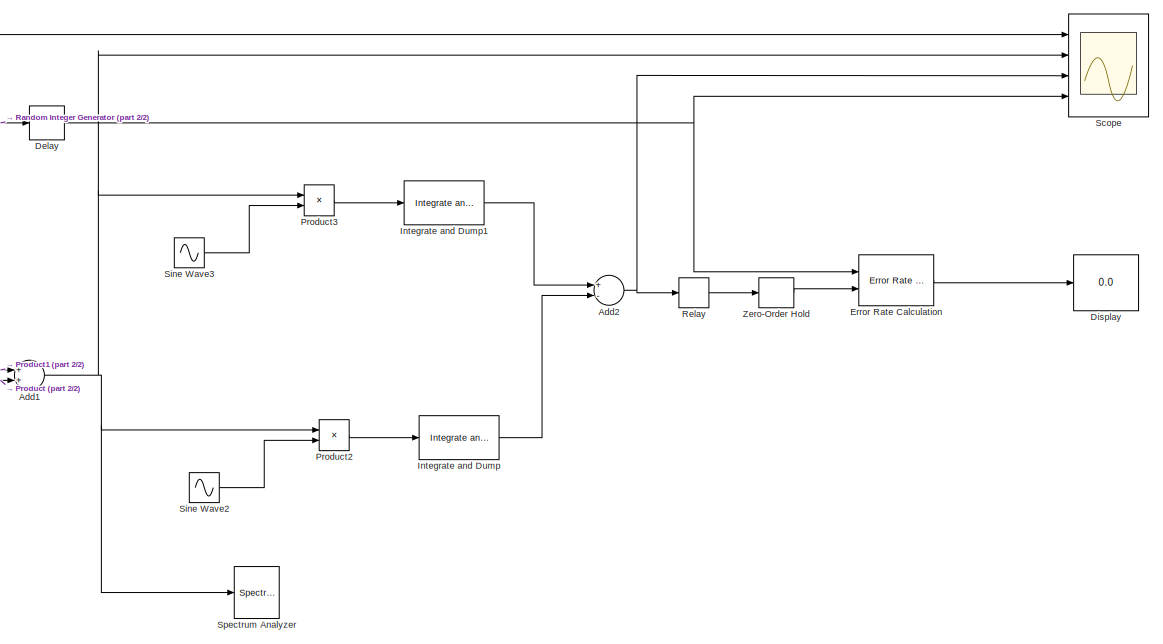
[diagram: root canvas - part 1/2, right side, full height]
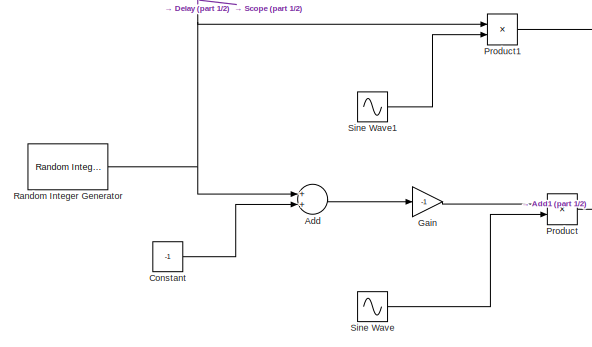
[diagram: root canvas - part 2/2, middle left region]
MODEL slx_38a96ac9a49a
KIND model
CONFIG AbsTol = auto
CONFIG EnableMultiTasking = off
CONFIG FixedStep = auto
CONFIG MaxStep = auto
CONFIG MinStep = auto
CONFIG RelTol = 1e-3
CONFIG SampleTimeConstraint = Unconstrained
CONFIG Solver = VariableStepAuto
CONFIG SolverName = VariableStepAuto
CONFIG StartTime = 0.0
CONFIG StopTime = 3
BLOCK [Sum] Add
  InputSameDT = off
  OutDataTypeStr = Inherit: Inherit via internal rule
  Ports = [2, 1]
  SaturateOnIntegerOverflow = off
BLOCK [Sum] Add1
  InputSameDT = off
  OutDataTypeStr = Inherit: Inherit via internal rule
  Ports = [2, 1]
  SaturateOnIntegerOverflow = off
BLOCK [Sum] Add2
  InputSameDT = off
  Inputs = +-
  OutDataTypeStr = Inherit: Inherit via internal rule
  Ports = [2, 1]
  SaturateOnIntegerOverflow = off
BLOCK [Constant] Constant
  Value = -1
BLOCK [Delay] Delay
  DelayLength = 1
  InputPortMap = u0
  Ports = [1, 1]
BLOCK [Display] Display
  Decimation = 1
  Ports = [1]
BLOCK [Reference] Error Rate Calculation  REF=commsink2/Error Rate
Calculation
  Ports = [2, 1]
  SourceBlock = commsink2/Error Rate\nCalculation
  SourceProductBaseCode = CM
  SourceProductName = Communications System Toolbox
  SourceType = Error Rate Calculation
BLOCK [Gain] Gain
  Gain = -1
  OutDataTypeStr = Inherit: Inherit via internal rule
  ParamDataTypeStr = Inherit: Inherit via internal rule
  SaturateOnIntegerOverflow = off
BLOCK [Reference] Integrate and Dump  REF=commfilt2/Integrate
and Dump
  Ports = [1, 1]
  SourceBlock = commfilt2/Integrate\nand Dump
  SourceProductBaseCode = CM
  SourceProductName = Communications System Toolbox
  SourceType = Integrate and Dump
BLOCK [Reference] Integrate and Dump1  REF=commfilt2/Integrate
and Dump
  Ports = [1, 1]
  SourceBlock = commfilt2/Integrate\nand Dump
  SourceProductBaseCode = CM
  SourceProductName = Communications System Toolbox
  SourceType = Integrate and Dump
BLOCK [Product] Product
  InputSameDT = off
  OutDataTypeStr = Inherit: Inherit via internal rule
  Ports = [2, 1]
  RndMeth = Floor
  SaturateOnIntegerOverflow = off
BLOCK [Product] Product1
  InputSameDT = off
  OutDataTypeStr = Inherit: Inherit via internal rule
  Ports = [2, 1]
  RndMeth = Floor
  SaturateOnIntegerOverflow = off
BLOCK [Product] Product2
  InputSameDT = off
  OutDataTypeStr = Inherit: Inherit via internal rule
  Ports = [2, 1]
  RndMeth = Floor
  SaturateOnIntegerOverflow = off
BLOCK [Product] Product3
  InputSameDT = off
  OutDataTypeStr = Inherit: Inherit via internal rule
  Ports = [2, 1]
  RndMeth = Floor
  SaturateOnIntegerOverflow = off
BLOCK [Reference] Random Integer Generator  REF=commrandsrc3/Random Integer
Generator
  Ports = [0, 1]
  SourceBlock = commrandsrc3/Random Integer\nGenerator
  SourceProductBaseCode = CM
  SourceProductName = Communications System Toolbox
  SourceType = Random Integer Generator
BLOCK [Relay] Relay
  InputProcessing = Elements as channels (sample based)
  OffSwitchValue = 0
  OnSwitchValue = 1
BLOCK [Scope] Scope
  Floating = off
  NumInputPorts = 4
  Ports = [4]
  ScopeSpecificationString = Simulink.scopes.TimeScopeBlockCfg('CurrentConfiguration', extmgr.ConfigurationSet(extmgr.Configuration('Core','General UI',true),extmgr.Configuration('Core','Source UI',true),extmgr.Configuration('Sources','WiredSimulink',true),extmgr.Configuration('Visuals','Time Domain',true,'SerializedDisplays',{struct('MinYLimReal','-0.125','MaxYLimReal','1.125','YLabelReal','','MinYLimMag','0.00000','MaxYLimM...<+3409ch>
BLOCK [Sin] Sine Wave
  Frequency = 10000*2*pi
  Ports = [0, 1]
  SampleTime = 1/100000
BLOCK [Sin] Sine Wave1
  Frequency = 15000*pi*2
  Ports = [0, 1]
  SampleTime = 1/100000
BLOCK [Sin] Sine Wave2
  Frequency = 10000*2*pi
  Ports = [0, 1]
  SampleTime = 1/100000
BLOCK [Sin] Sine Wave3
  Frequency = 15000*2*pi
  Ports = [0, 1]
  SampleTime = 1/100000
BLOCK [SpectrumAnalyzer] Spectrum Analyzer
  Ports = [1]
  ScopeSpecificationString = spbscopes.SpectrumAnalyzerBlockCfg('CurrentConfiguration', extmgr.ConfigurationSet(extmgr.Configuration('Core','General UI',true),extmgr.Configuration('Core','Source UI',true),extmgr.Configuration('Sources','WiredSimulink',true),extmgr.Configuration('Visuals','Spectrum',true,'AxesProperties',struct('Color',{[0 0 0],[0 0 0]},'XColor',{[0.686274509803922 0.686274509803922 0.686274509803922],[0.68627...<+1868ch>
BLOCK [ZeroOrderHold] Zero-Order Hold
  SampleTime = 1/1000
NET Add1:1 -> Product2:1, Product3:1, Scope:2, Spectrum Analyzer:1
NET Add2:1 -> Relay:1, Scope:3
LINE Add:1 -> Gain:1
LINE Constant:1 -> Add:2
NET Delay:1 -> Error Rate Calculation:1, Scope:4
LINE Error Rate Calculation:1 -> Display:1
LINE Gain:1 -> Product:1
LINE Integrate and Dump1:1 -> Add2:1
LINE Integrate and Dump:1 -> Add2:2
LINE Product1:1 -> Add1:1
LINE Product2:1 -> Integrate and Dump:1
LINE Product3:1 -> Integrate and Dump1:1
LINE Product:1 -> Add1:2
NET Random Integer Generator:1 -> Add:1, Delay:1, Product1:1, Scope:1
LINE Relay:1 -> Zero-Order Hold:1
LINE Sine Wave1:1 -> Product1:2
LINE Sine Wave2:1 -> Product2:2
LINE Sine Wave3:1 -> Product3:2
LINE Sine Wave:1 -> Product:2
LINE Zero-Order Hold:1 -> Error Rate Calculation:2
note: NET lines group one-source signal fan-out (src -> all destinations, sorted); 1:1 wires keep LINE
